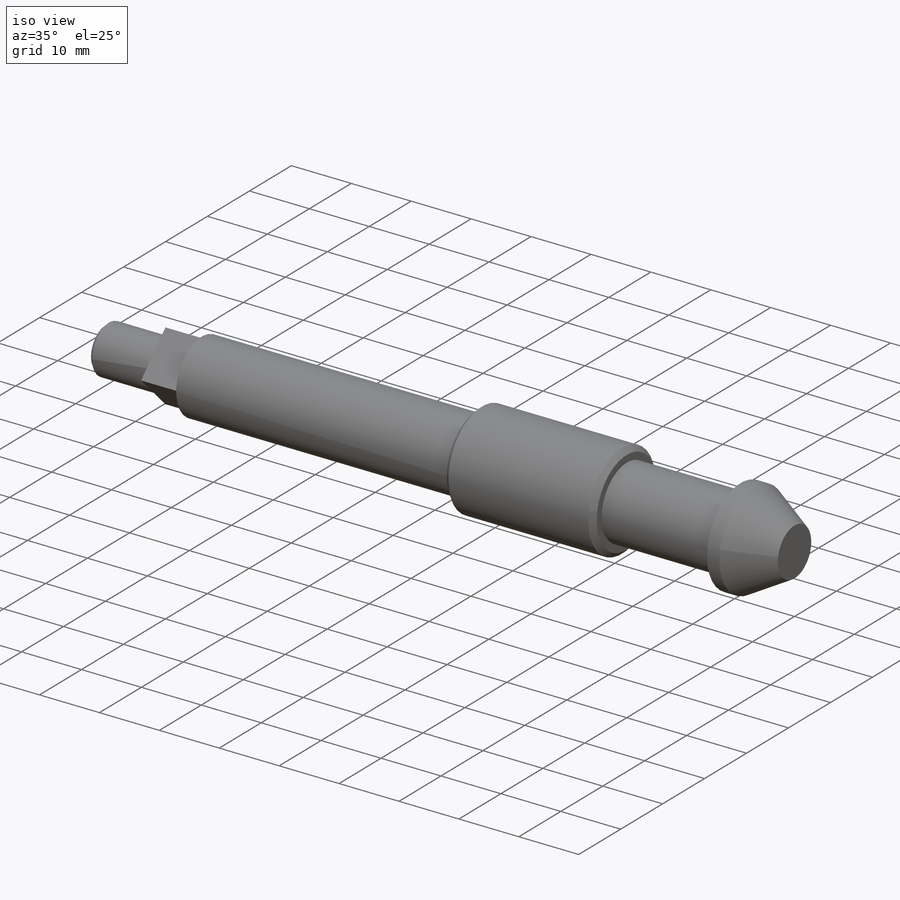
[diagram: iso view]
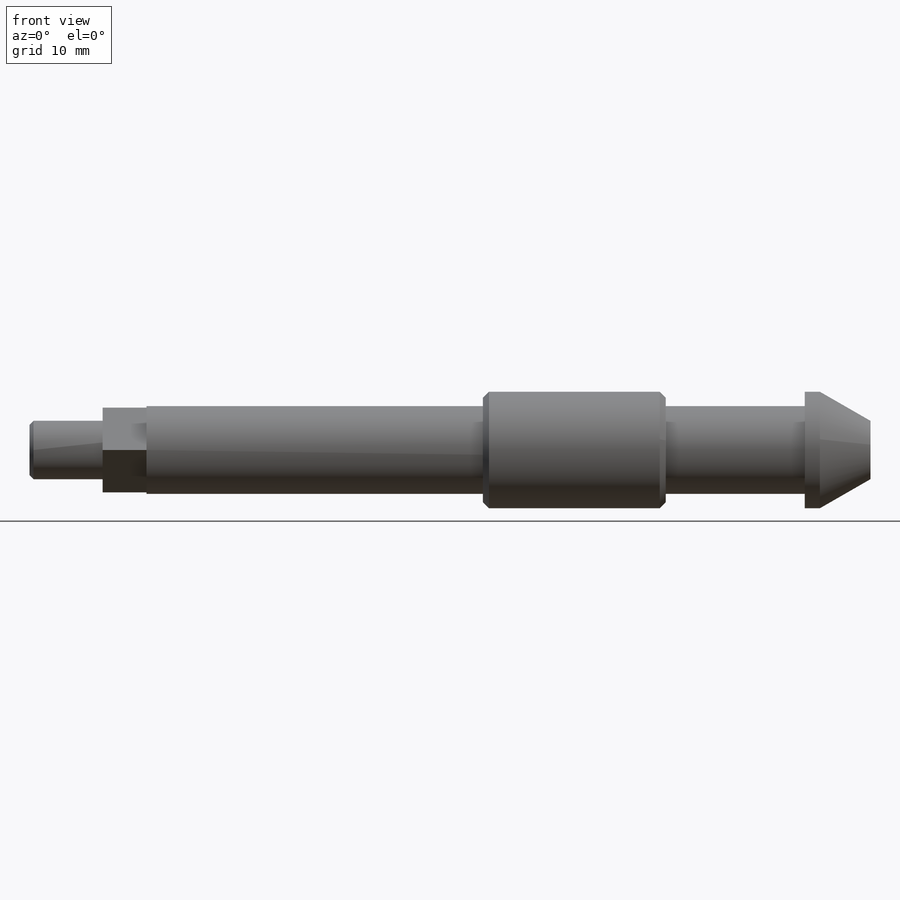
[diagram: front view]
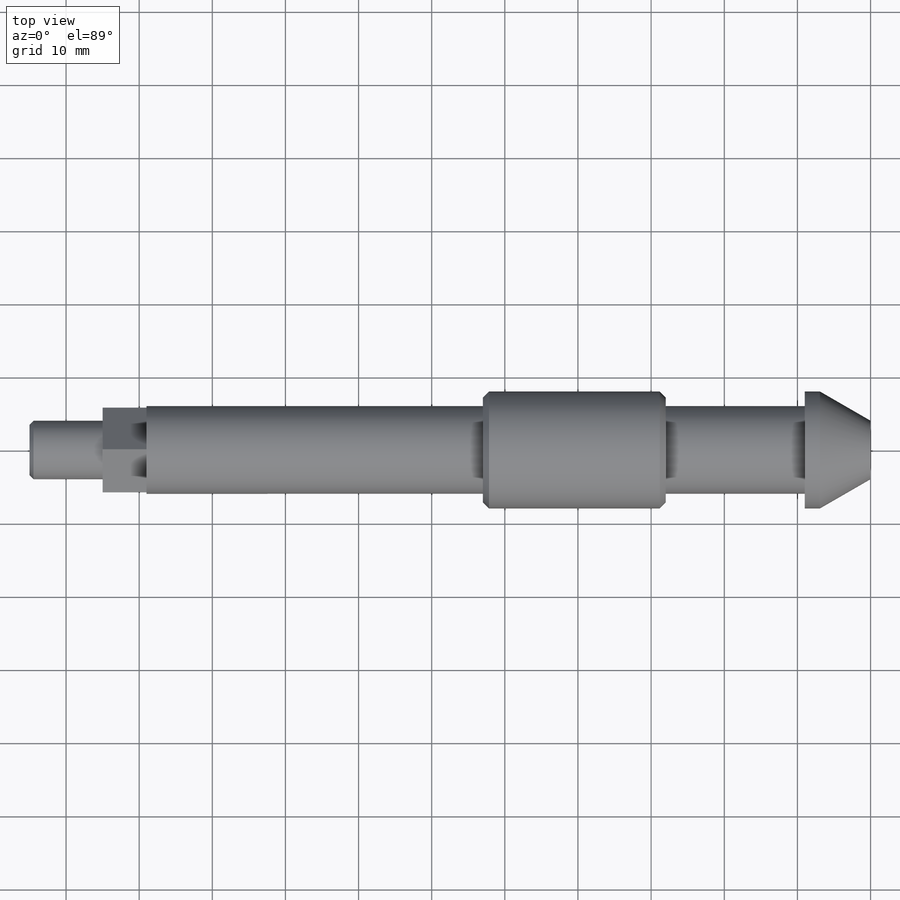
[diagram: top view]
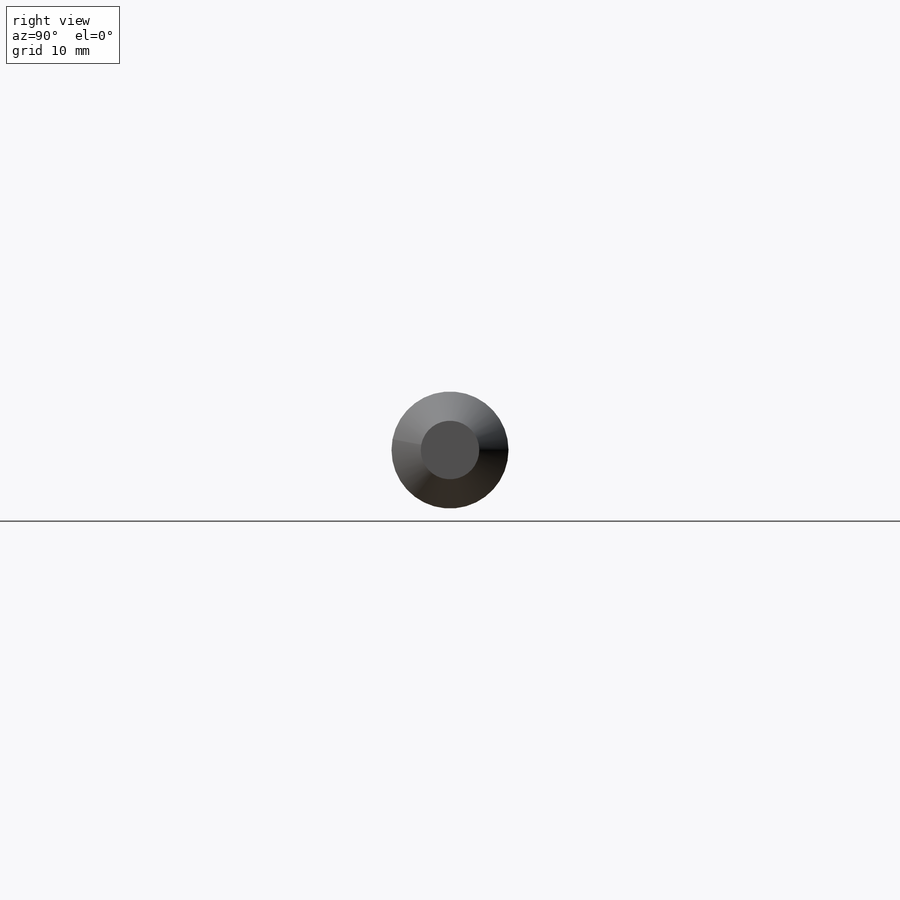
[diagram: right view]
SOLIDWORKS PART (.sldprt)
format: sldprt  version: not decoded by parser v0  size: 281,600 bytes
history: native  units: mm
features: plane x3, sketch x3, thread x2, chamfer x2, cut_extrude x2, material x1, revolve x1 (+9 scaffold rows collapsed)
feature tree (23):
  scaffold x9  (default folders/planes/origin — collapsed)
  material  "Сталь"
  plane  "Спереди"
  plane  "Сверху"
  plane  "Справа"
  sketch  "Эскиз1"  dims[c1.D1=115.0mm c1.D2=9.0mm c1.D3=8.0mm c1.D4=16.0mm c1.D5=4.0mm c1.D6=12.0mm c1.D7=16.0mm c1.D8=25.0mm c1.D9=28.0mm c2.D4=8.0mm c3.D4=60.0deg c3.D10=~17.237604mm c3.D3=8.0mm]
  revolve  "Повернуть1"  [1 undecoded]
  thread  "Условное изображение резьбы1"  Diameter=5mm  [1 undecoded]
  chamfer  "Фаска1"  Distance=0.828mm Angle=45deg
  sketch  "Эскиз2"  dims[D1=8.0mm]
  cut_extrude  "Вырез-Вытянуть1"  [1 undecoded]
  thread  "Условное изображение резьбы2"  Diameter=6.891mm  [1 undecoded]
  sketch  "Эскиз3"  dims[D2=8.2mm D1=0.0mm]
  cut_extrude  "Вырез-Вытянуть2"  Depth=6mm
  chamfer  "Фаска2"  Distance=0.5545mm Angle=45deg
decode coverage: 8 of 10 modeling features carry decoded parameters
note: ~ marks probable driven/reference dimensions
note: 4 parameter values undecoded
note: suppression state not decoded; provenance and decode notes live in map.json
